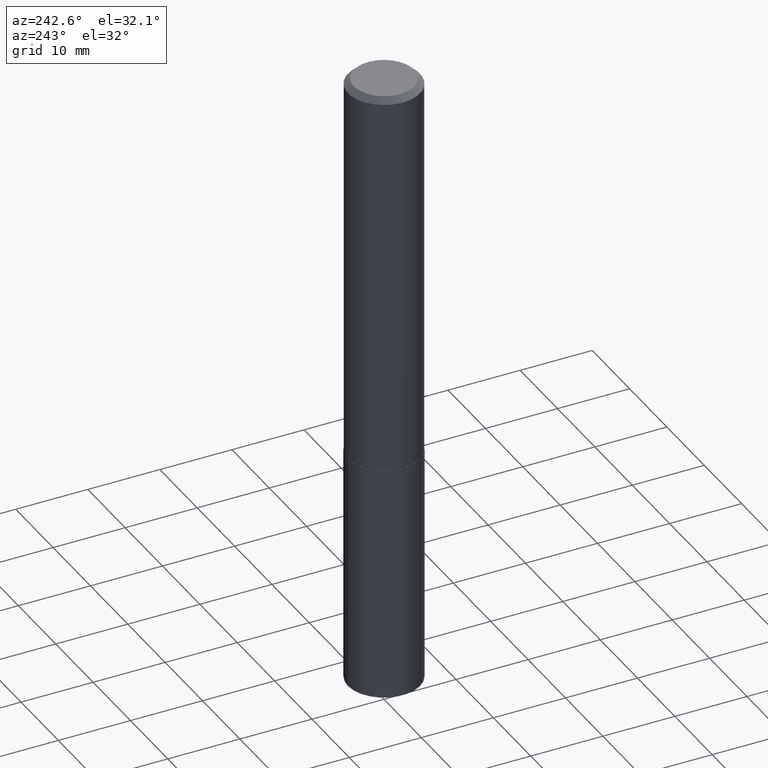
[diagram: clean part render]
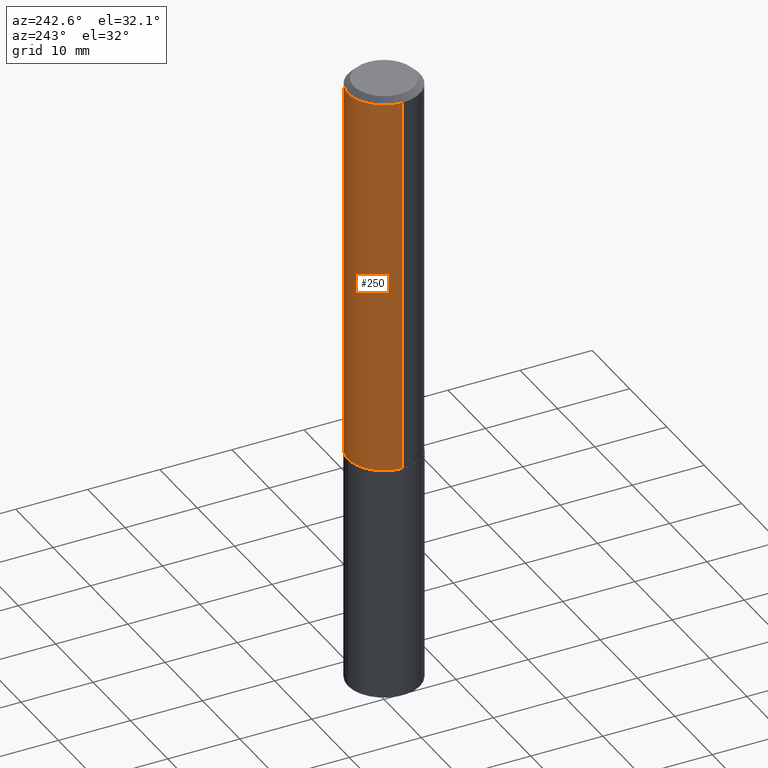
[diagram: same view with one face highlighted and labeled with its STEP entity id]
A machine part, auxiliary view. The second image highlights one B-rep face of the part: STEP entity #250.
In plain terms, the highlighted cylindrical surface (partial cylindrical patch) has radius 5 mm, axis along (-0, 0, 1).
Its self-contained STEP definition (entity closure, byte-faithful):
#2 = ORIENTED_EDGE ( 'NONE', *, *, #259, .T. ) ;
#29 = CARTESIAN_POINT ( 'NONE',  ( -0.1968500000000000250, -2.366248239364276387E-15, -0.03125000000000020817 ) ) ;
#41 = DIRECTION ( 'NONE',  ( 1.000000000000000000, -6.982962677686265133E-15, 0.000000000000000000 ) ) ;
#43 = VERTEX_POINT ( 'NONE', #86 ) ;
#45 = VERTEX_POINT ( 'NONE', #239 ) ;
#58 = DIRECTION ( 'NONE',  ( -2.445468806185136877E-29, 3.491481338843145188E-15, 1.000000000000000000 ) ) ;
#64 = DIRECTION ( 'NONE',  ( -2.445468806185136597E-29, 3.491481338843145583E-15, 1.000000000000000000 ) ) ;
#86 = CARTESIAN_POINT ( 'NONE',  ( 0.1968500000000000250, -1.483704994941390709E-15, -0.03125000000000020817 ) ) ;
#91 = DIRECTION ( 'NONE',  ( -2.445468806185136877E-29, 3.491481338843145188E-15, 1.000000000000000000 ) ) ;
#94 = CARTESIAN_POINT ( 'NONE',  ( 7.642090019328602662E-31, -1.091087918388490267E-16, -0.03125000000000020817 ) ) ;
#123 = AXIS2_PLACEMENT_3D ( 'NONE', #94, #365, #362 ) ;
#126 = ORIENTED_EDGE ( 'NONE', *, *, #307, .F. ) ;
#127 = LINE ( 'NONE', #270, #142 ) ;
#140 = EDGE_CURVE ( 'NONE', #342, #148, #297, .T. ) ;
#142 = VECTOR ( 'NONE', #91, 39.37007874015748143 ) ;
#148 = VERTEX_POINT ( 'NONE', #29 ) ;
#152 = CARTESIAN_POINT ( 'NONE',  ( -0.1968500000000002470, -6.022091062233462250E-15, -2.125399999999999956 ) ) ;
#160 = VECTOR ( 'NONE', #58, 39.37007874015748143 ) ;
#161 = AXIS2_PLACEMENT_3D ( 'NONE', #221, #64, #216 ) ;
#164 = CARTESIAN_POINT ( 'NONE',  ( 5.197599400665889285E-29, -7.420794437577220826E-15, -2.125399999999999956 ) ) ;
#183 = CARTESIAN_POINT ( 'NONE',  ( -0.1968500000000001082, 1.398703375343757985E-15, -9.682923725166787881E-30 ) ) ;
#195 = EDGE_LOOP ( 'NONE', ( #2, #199, #371, #126 ) ) ;
#199 = ORIENTED_EDGE ( 'NONE', *, *, #140, .T. ) ;
#216 = DIRECTION ( 'NONE',  ( 1.000000000000000000, -6.982962677686266711E-15, 4.876176775795935793E-29 ) ) ;
#221 = CARTESIAN_POINT ( 'NONE',  ( 0.000000000000000000, 0.000000000000000000, 0.000000000000000000 ) ) ;
#224 = CIRCLE ( 'NONE', #123, 0.1968500000000000250 ) ;
#239 = CARTESIAN_POINT ( 'NONE',  ( 0.1968500000000002470, -8.795390640679764012E-15, -2.125399999999999956 ) ) ;
#249 = CYLINDRICAL_SURFACE ( 'NONE', #161, 0.1968500000000001082 ) ;
#250 = ADVANCED_FACE ( 'NONE', ( #324 ), #249, .T. ) ;
#257 = AXIS2_PLACEMENT_3D ( 'NONE', #164, #278, #41 ) ;
#259 = EDGE_CURVE ( 'NONE', #45, #342, #262, .T. ) ;
#262 = CIRCLE ( 'NONE', #257, 0.1968500000000002470 ) ;
#270 = CARTESIAN_POINT ( 'NONE',  ( 0.1968500000000001082, -1.374596203102542397E-15, 9.598753983154305062E-30 ) ) ;
#278 = DIRECTION ( 'NONE',  ( -2.445468806185136597E-29, 3.491481338843145583E-15, 1.000000000000000000 ) ) ;
#297 = LINE ( 'NONE', #183, #160 ) ;
#307 = EDGE_CURVE ( 'NONE', #45, #43, #127, .T. ) ;
#324 = FACE_OUTER_BOUND ( 'NONE', #195, .T. ) ;
#342 = VERTEX_POINT ( 'NONE', #152 ) ;
#352 = EDGE_CURVE ( 'NONE', #43, #148, #224, .T. ) ;
#362 = DIRECTION ( 'NONE',  ( 1.000000000000000000, -6.982962677686265922E-15, 0.000000000000000000 ) ) ;
#365 = DIRECTION ( 'NONE',  ( -2.445468806185136597E-29, 3.491481338843145583E-15, 1.000000000000000000 ) ) ;
#371 = ORIENTED_EDGE ( 'NONE', *, *, #352, .F. ) ;